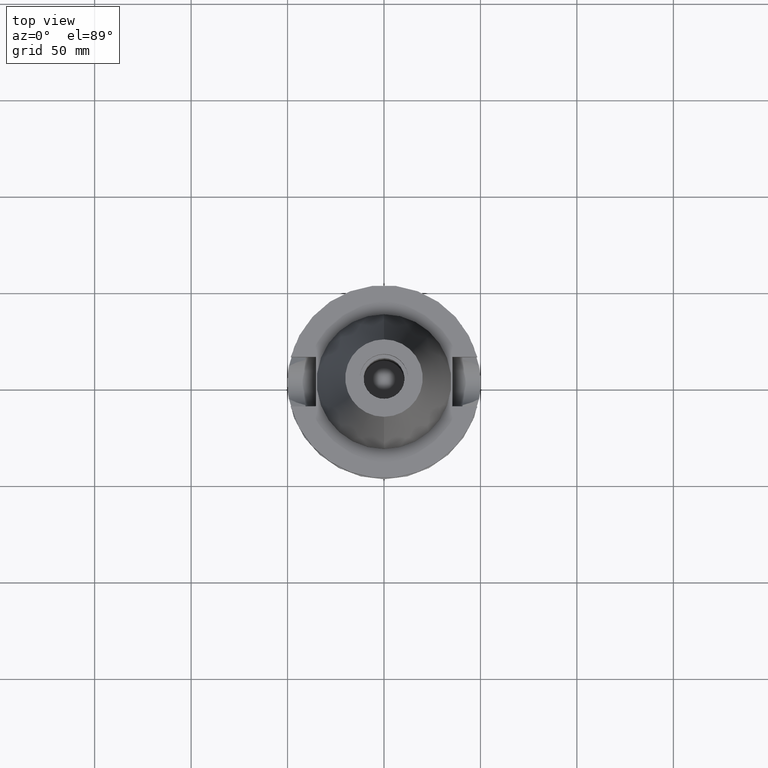
[diagram: clean part render]
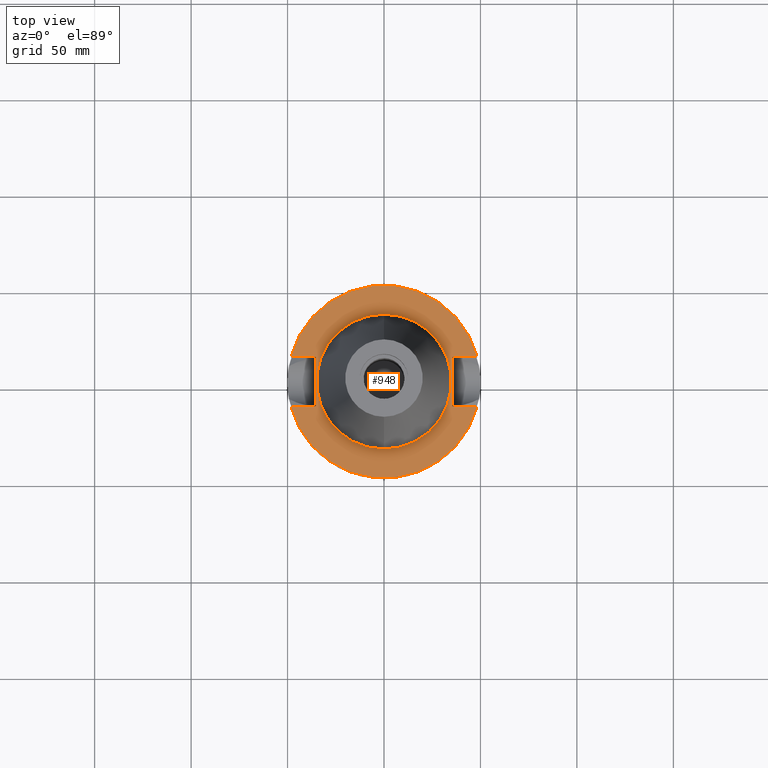
[diagram: same view with one face highlighted and labeled with its STEP entity id]
A machine part, top view. The second image highlights one B-rep face of the part: STEP entity #948.
In plain terms, the highlighted planar face has unit normal (0, 0, -1).
Its self-contained STEP definition (entity closure, byte-faithful):
#42 = ORIENTED_EDGE ( 'NONE', *, *, #2357, .F. ) ;
#68 = DIRECTION ( 'NONE',  ( 1.000000000000000000, 0.0000000000000000000, 0.0000000000000000000 ) ) ;
#178 = DIRECTION ( 'NONE',  ( 0.0000000000000000000, 0.0000000000000000000, 1.000000000000000000 ) ) ;
#210 = CARTESIAN_POINT ( 'NONE',  ( 35.39999999999999858, 12.84999999999999964, -3.000000000000000000 ) ) ;
#222 = AXIS2_PLACEMENT_3D ( 'NONE', #3430, #2254, #2815 ) ;
#255 = VERTEX_POINT ( 'NONE', #1603 ) ;
#258 = VERTEX_POINT ( 'NONE', #210 ) ;
#290 = AXIS2_PLACEMENT_3D ( 'NONE', #1760, #384, #615 ) ;
#296 = LINE ( 'NONE', #817, #1599 ) ;
#301 = LINE ( 'NONE', #1048, #2676 ) ;
#341 = ORIENTED_EDGE ( 'NONE', *, *, #343, .T. ) ;
#343 = EDGE_CURVE ( 'NONE', #255, #1972, #296, .T. ) ;
#384 = DIRECTION ( 'NONE',  ( 0.0000000000000000000, 0.0000000000000000000, -1.000000000000000000 ) ) ;
#417 = PLANE ( 'NONE',  #290 ) ;
#446 = DIRECTION ( 'NONE',  ( 0.0000000000000000000, -1.000000000000000000, 0.0000000000000000000 ) ) ;
#497 = CIRCLE ( 'NONE', #222, 50.00000000000000000 ) ;
#514 = CARTESIAN_POINT ( 'NONE',  ( 0.0000000000000000000, -34.92499999999999716, -3.000000000000000000 ) ) ;
#536 = VECTOR ( 'NONE', #3289, 1000.000000000000000 ) ;
#615 = DIRECTION ( 'NONE',  ( 0.0000000000000000000, -1.000000000000000000, 0.0000000000000000000 ) ) ;
#650 = FACE_OUTER_BOUND ( 'NONE', #1995, .T. ) ;
#658 = VECTOR ( 'NONE', #1856, 1000.000000000000000 ) ;
#704 = ORIENTED_EDGE ( 'NONE', *, *, #2255, .F. ) ;
#817 = CARTESIAN_POINT ( 'NONE',  ( -35.39999999999999858, -12.84999999999999964, -3.000000000000000000 ) ) ;
#827 = DIRECTION ( 'NONE',  ( 1.000000000000000000, 0.0000000000000000000, 0.0000000000000000000 ) ) ;
#847 = LINE ( 'NONE', #2470, #536 ) ;
#867 = FACE_BOUND ( 'NONE', #3140, .T. ) ;
#948 = ADVANCED_FACE ( 'NONE', ( #650, #867 ), #417, .F. ) ;
#968 = DIRECTION ( 'NONE',  ( 0.0000000000000000000, 1.000000000000000000, 0.0000000000000000000 ) ) ;
#980 = VERTEX_POINT ( 'NONE', #1969 ) ;
#983 = ORIENTED_EDGE ( 'NONE', *, *, #3039, .F. ) ;
#984 = CARTESIAN_POINT ( 'NONE',  ( 0.0000000000000000000, 2.681854025452999794E-14, -3.000000000000000000 ) ) ;
#1048 = CARTESIAN_POINT ( 'NONE',  ( 35.39999999999999858, 12.84999999999999964, -3.000000000000000000 ) ) ;
#1060 = EDGE_CURVE ( 'NONE', #1588, #2301, #2546, .T. ) ;
#1107 = DIRECTION ( 'NONE',  ( -1.000000000000000000, 0.0000000000000000000, 0.0000000000000000000 ) ) ;
#1180 = CARTESIAN_POINT ( 'NONE',  ( 0.0000000000000000000, 2.681854025452999794E-14, -3.000000000000000000 ) ) ;
#1186 = CIRCLE ( 'NONE', #3390, 50.00000000000000000 ) ;
#1268 = DIRECTION ( 'NONE',  ( 0.0000000000000000000, 1.000000000000000000, 0.0000000000000000000 ) ) ;
#1283 = ORIENTED_EDGE ( 'NONE', *, *, #3137, .T. ) ;
#1337 = EDGE_CURVE ( 'NONE', #2301, #1972, #497, .T. ) ;
#1454 = CARTESIAN_POINT ( 'NONE',  ( 48.32057015392000210, -12.84999999999999964, -3.000000000000000000 ) ) ;
#1588 = VERTEX_POINT ( 'NONE', #3193 ) ;
#1593 = CARTESIAN_POINT ( 'NONE',  ( 0.0000000000000000000, 34.92499999999999716, -3.000000000000000000 ) ) ;
#1598 = ORIENTED_EDGE ( 'NONE', *, *, #1337, .F. ) ;
#1599 = VECTOR ( 'NONE', #1107, 1000.000000000000000 ) ;
#1603 = CARTESIAN_POINT ( 'NONE',  ( -35.39999999999999858, -12.84999999999999964, -3.000000000000000000 ) ) ;
#1621 = CARTESIAN_POINT ( 'NONE',  ( -35.39999999999999858, 12.84999999999999964, -3.000000000000000000 ) ) ;
#1747 = CARTESIAN_POINT ( 'NONE',  ( -48.32057015392000210, -12.84999999999999964, -3.000000000000000000 ) ) ;
#1760 = CARTESIAN_POINT ( 'NONE',  ( 0.0000000000000000000, 1.187907395172999884E-14, -3.000000000000000000 ) ) ;
#1762 = CIRCLE ( 'NONE', #2167, 34.92499999999999716 ) ;
#1804 = CARTESIAN_POINT ( 'NONE',  ( 0.0000000000000000000, 2.681854025452999794E-14, -3.000000000000000000 ) ) ;
#1856 = DIRECTION ( 'NONE',  ( -1.000000000000000000, 0.0000000000000000000, 0.0000000000000000000 ) ) ;
#1910 = CARTESIAN_POINT ( 'NONE',  ( 48.32057015392000210, 12.84999999999999964, -3.000000000000000000 ) ) ;
#1926 = VECTOR ( 'NONE', #68, 1000.000000000000000 ) ;
#1942 = DIRECTION ( 'NONE',  ( 0.0000000000000000000, -1.000000000000000000, 0.0000000000000000000 ) ) ;
#1969 = CARTESIAN_POINT ( 'NONE',  ( -35.39999999999999858, 12.84999999999999964, -3.000000000000000000 ) ) ;
#1972 = VERTEX_POINT ( 'NONE', #1747 ) ;
#1995 = EDGE_LOOP ( 'NONE', ( #341, #1598, #2723, #983, #1283, #2721, #704, #2589 ) ) ;
#2012 = EDGE_CURVE ( 'NONE', #2981, #3214, #1762, .T. ) ;
#2039 = DIRECTION ( 'NONE',  ( 0.0000000000000000000, 0.0000000000000000000, -1.000000000000000000 ) ) ;
#2081 = EDGE_CURVE ( 'NONE', #2613, #3266, #1186, .T. ) ;
#2088 = VECTOR ( 'NONE', #446, 1000.000000000000000 ) ;
#2167 = AXIS2_PLACEMENT_3D ( 'NONE', #984, #178, #968 ) ;
#2254 = DIRECTION ( 'NONE',  ( 0.0000000000000000000, 0.0000000000000000000, -1.000000000000000000 ) ) ;
#2255 = EDGE_CURVE ( 'NONE', #980, #2613, #3299, .T. ) ;
#2301 = VERTEX_POINT ( 'NONE', #1454 ) ;
#2306 = CARTESIAN_POINT ( 'NONE',  ( 35.39999999999999858, -12.84999999999999964, -3.000000000000000000 ) ) ;
#2357 = EDGE_CURVE ( 'NONE', #3214, #2981, #2814, .T. ) ;
#2415 = LINE ( 'NONE', #2929, #2088 ) ;
#2470 = CARTESIAN_POINT ( 'NONE',  ( -35.39999999999999858, -12.84999999999999964, -3.000000000000000000 ) ) ;
#2546 = LINE ( 'NONE', #2306, #1926 ) ;
#2562 = DIRECTION ( 'NONE',  ( 0.0000000000000000000, 0.0000000000000000000, 1.000000000000000000 ) ) ;
#2589 = ORIENTED_EDGE ( 'NONE', *, *, #3105, .F. ) ;
#2613 = VERTEX_POINT ( 'NONE', #3253 ) ;
#2676 = VECTOR ( 'NONE', #827, 1000.000000000000000 ) ;
#2721 = ORIENTED_EDGE ( 'NONE', *, *, #2081, .F. ) ;
#2723 = ORIENTED_EDGE ( 'NONE', *, *, #1060, .F. ) ;
#2814 = CIRCLE ( 'NONE', #2996, 34.92499999999999716 ) ;
#2815 = DIRECTION ( 'NONE',  ( 0.0000000000000000000, -1.000000000000000000, 0.0000000000000000000 ) ) ;
#2929 = CARTESIAN_POINT ( 'NONE',  ( 35.39999999999999858, 12.84999999999999964, -3.000000000000000000 ) ) ;
#2981 = VERTEX_POINT ( 'NONE', #1593 ) ;
#2996 = AXIS2_PLACEMENT_3D ( 'NONE', #1180, #2562, #1942 ) ;
#3039 = EDGE_CURVE ( 'NONE', #258, #1588, #2415, .T. ) ;
#3105 = EDGE_CURVE ( 'NONE', #255, #980, #847, .T. ) ;
#3137 = EDGE_CURVE ( 'NONE', #258, #3266, #301, .T. ) ;
#3140 = EDGE_LOOP ( 'NONE', ( #42, #3540 ) ) ;
#3193 = CARTESIAN_POINT ( 'NONE',  ( 35.39999999999999858, -12.84999999999999964, -3.000000000000000000 ) ) ;
#3214 = VERTEX_POINT ( 'NONE', #514 ) ;
#3253 = CARTESIAN_POINT ( 'NONE',  ( -48.32057015392000210, 12.84999999999999964, -3.000000000000000000 ) ) ;
#3266 = VERTEX_POINT ( 'NONE', #1910 ) ;
#3289 = DIRECTION ( 'NONE',  ( 0.0000000000000000000, 1.000000000000000000, 0.0000000000000000000 ) ) ;
#3299 = LINE ( 'NONE', #1621, #658 ) ;
#3390 = AXIS2_PLACEMENT_3D ( 'NONE', #1804, #2039, #1268 ) ;
#3430 = CARTESIAN_POINT ( 'NONE',  ( 0.0000000000000000000, 2.681854025452999794E-14, -3.000000000000000000 ) ) ;
#3540 = ORIENTED_EDGE ( 'NONE', *, *, #2012, .F. ) ;